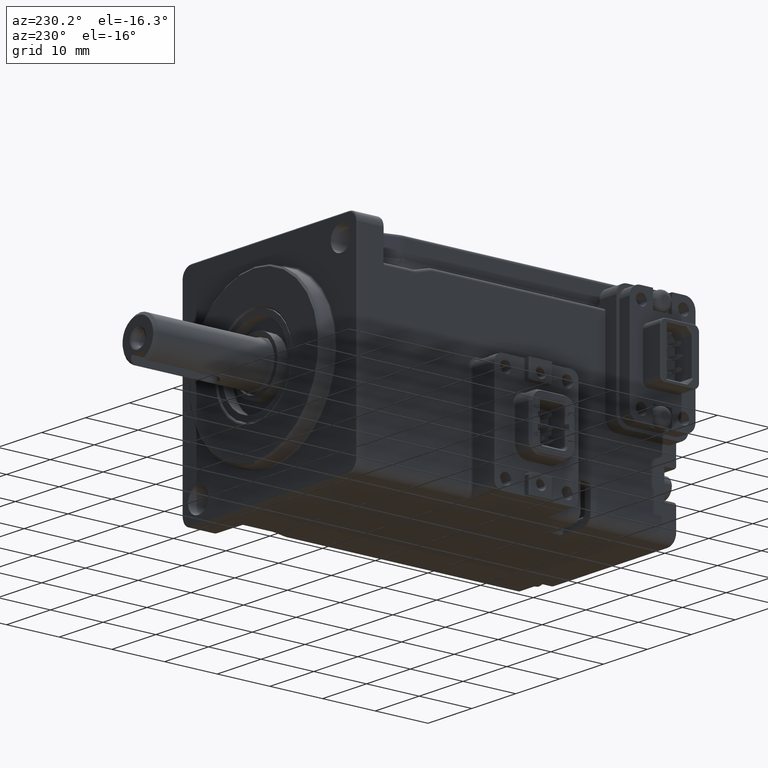
[diagram: clean part render]
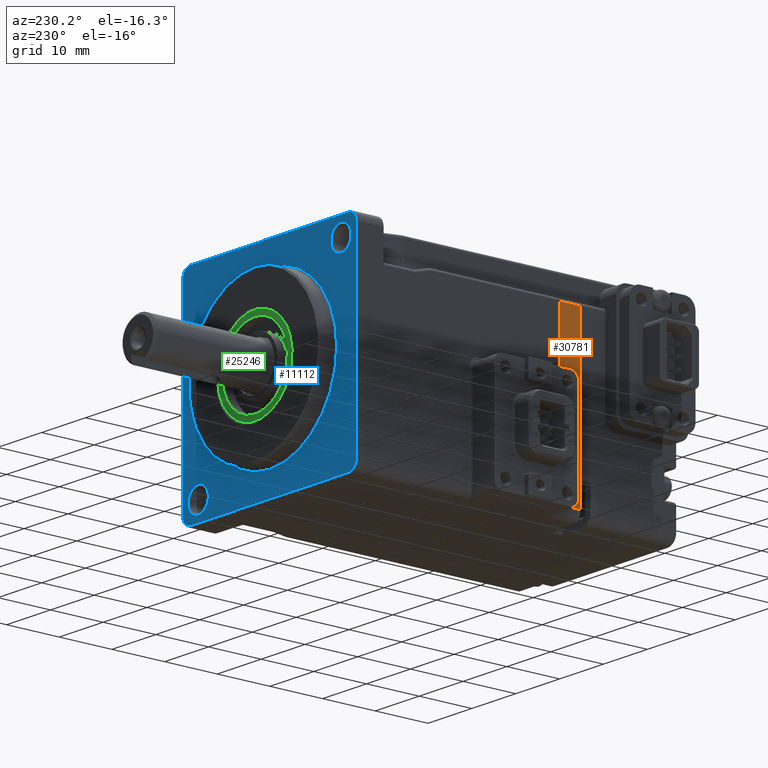
[diagram: same view with three faces highlighted in distinct colors, each labeled with its STEP entity id]
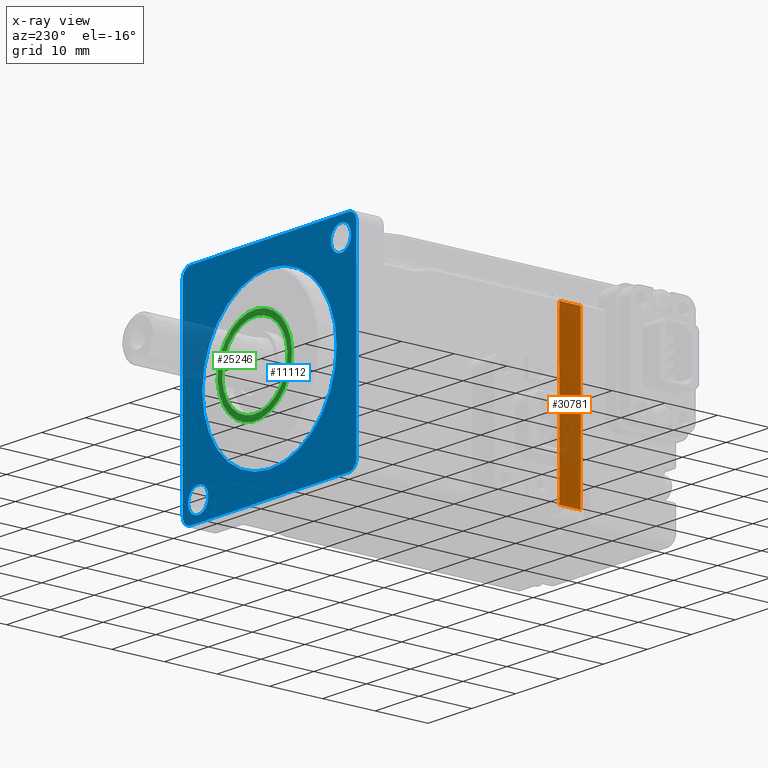
[diagram: x-ray of the same camera — body ghosted, the three highlighted faces saturated]
A machine part, auxiliary view with three faces highlighted in distinct colors.
The next image is the same camera in x-ray (body ghosted, the three faces saturated) — at least one of them is partly hidden behind the body in this view.
Their STEP definitions:

[orange] entity #30781 — the highlighted planar face has unit normal (1, 0, 0).
#250 = ORIENTED_EDGE ( 'NONE', *, *, #24151, .F. ) ;
#2078 = VECTOR ( 'NONE', #9762, 1000.000000000000000 ) ;
#2365 = AXIS2_PLACEMENT_3D ( 'NONE', #3391, #10712, #8291 ) ;
#3391 = CARTESIAN_POINT ( 'NONE',  ( -19.99999999999997513, -6.418476861114186249E-14, 17.99999999999993605 ) ) ;
#4224 = EDGE_CURVE ( 'NONE', #32824, #22142, #33379, .T. ) ;
#5685 = CARTESIAN_POINT ( 'NONE',  ( -19.99999999999996803, -4.000000000000017764, -18.00000000000003197 ) ) ;
#7414 = DIRECTION ( 'NONE',  ( -3.151439132538225287E-16, 1.000000000000000000, 1.278170454777735420E-15 ) ) ;
#7622 = FACE_OUTER_BOUND ( 'NONE', #34022, .T. ) ;
#8291 = DIRECTION ( 'NONE',  ( 3.151439132538225287E-16, -1.000000000000000000, -1.278170454777735420E-15 ) ) ;
#9257 = CARTESIAN_POINT ( 'NONE',  ( -19.99999999999997513, -1.734723475976807094E-14, -18.00000000000002487 ) ) ;
#9417 = VECTOR ( 'NONE', #25881, 1000.000000000000000 ) ;
#9762 = DIRECTION ( 'NONE',  ( 9.637352644315600173E-17, 1.278170454777735420E-15, -1.000000000000000000 ) ) ;
#10313 = CARTESIAN_POINT ( 'NONE',  ( -19.99999999999997513, -5.724587470723463412E-14, 12.99999999999995737 ) ) ;
#10712 = DIRECTION ( 'NONE',  ( 1.000000000000000000, 3.151439132538225287E-16, 4.028076389240736408E-31 ) ) ;
#11846 = DIRECTION ( 'NONE',  ( -1.243023563421512105E-46, -1.278170454777735420E-15, 1.000000000000000000 ) ) ;
#12815 = ORIENTED_EDGE ( 'NONE', *, *, #30928, .T. ) ;
#15196 = CARTESIAN_POINT ( 'NONE',  ( -19.99999999999997513, -1.734723475976807094E-14, -18.00000000000002487 ) ) ;
#18303 = LINE ( 'NONE', #28955, #30724 ) ;
#19648 = LINE ( 'NONE', #28031, #27776 ) ;
#21234 = VERTEX_POINT ( 'NONE', #10313 ) ;
#22142 = VERTEX_POINT ( 'NONE', #5685 ) ;
#23534 = CARTESIAN_POINT ( 'NONE',  ( -19.99999999999997513, -4.000000000000057732, 12.99999999999995204 ) ) ;
#23596 = PLANE ( 'NONE',  #2365 ) ;
#24151 = EDGE_CURVE ( 'NONE', #31138, #21234, #19648, .T. ) ;
#25881 = DIRECTION ( 'NONE',  ( 3.151439132538225287E-16, -1.000000000000000000, -1.278170454777735420E-15 ) ) ;
#26336 = ORIENTED_EDGE ( 'NONE', *, *, #4224, .F. ) ;
#27776 = VECTOR ( 'NONE', #11846, 1000.000000000000000 ) ;
#28031 = CARTESIAN_POINT ( 'NONE',  ( -19.99999999999997513, -6.418476861114186249E-14, 17.99999999999993605 ) ) ;
#28394 = CARTESIAN_POINT ( 'NONE',  ( -19.99999999999997513, -4.000000000000063949, 17.99999999999994316 ) ) ;
#28955 = CARTESIAN_POINT ( 'NONE',  ( -19.99999999999997513, -5.724587470723463412E-14, 12.99999999999995737 ) ) ;
#28971 = ORIENTED_EDGE ( 'NONE', *, *, #29173, .T. ) ;
#29173 = EDGE_CURVE ( 'NONE', #31138, #22142, #33474, .T. ) ;
#30724 = VECTOR ( 'NONE', #7414, 1000.000000000000000 ) ;
#30781 = ADVANCED_FACE ( 'NONE', ( #7622 ), #23596, .F. ) ;
#30928 = EDGE_CURVE ( 'NONE', #32824, #21234, #18303, .T. ) ;
#31138 = VERTEX_POINT ( 'NONE', #9257 ) ;
#32824 = VERTEX_POINT ( 'NONE', #23534 ) ;
#33379 = LINE ( 'NONE', #28394, #2078 ) ;
#33474 = LINE ( 'NONE', #15196, #9417 ) ;
#34022 = EDGE_LOOP ( 'NONE', ( #26336, #12815, #250, #28971 ) ) ;

[blue] entity #11112 — the highlighted planar face has unit normal (0, -1, 0).
#373 = AXIS2_PLACEMENT_3D ( 'NONE', #2399, #33873, #20646 ) ;
#423 = ORIENTED_EDGE ( 'NONE', *, *, #25373, .T. ) ;
#1126 = EDGE_CURVE ( 'NONE', #21275, #7003, #19931, .T. ) ;
#1253 = VECTOR ( 'NONE', #17139, 1000.000000000000000 ) ;
#1536 = DIRECTION ( 'NONE',  ( 0.000000000000000000, 0.000000000000000000, -1.000000000000000000 ) ) ;
#1690 = LINE ( 'NONE', #33663, #29685 ) ;
#1704 = CARTESIAN_POINT ( 'NONE',  ( -19.80000000000001137, 38.40000000000000568, -18.00000000000000355 ) ) ;
#1851 = CARTESIAN_POINT ( 'NONE',  ( 16.26345596729062137, 38.40000000000000568, -13.96345596729056382 ) ) ;
#2060 = CARTESIAN_POINT ( 'NONE',  ( 19.80000000000000426, 38.40000000000000568, 18.00000000000000355 ) ) ;
#2196 = CARTESIAN_POINT ( 'NONE',  ( 17.99999999999999645, 38.40000000000000568, 18.00000000000000355 ) ) ;
#2294 = CARTESIAN_POINT ( 'NONE',  ( 18.00000000000000355, 38.40000000000000568, -18.00000000000000355 ) ) ;
#2364 = DIRECTION ( 'NONE',  ( -0.000000000000000000, 1.000000000000000000, -0.000000000000000000 ) ) ;
#2399 = CARTESIAN_POINT ( 'NONE',  ( -16.26345596729061427, 38.40000000000000568, 16.26345596729056808 ) ) ;
#2504 = AXIS2_PLACEMENT_3D ( 'NONE', #19311, #6646, #13925 ) ;
#2824 = VERTEX_POINT ( 'NONE', #16872 ) ;
#2841 = CARTESIAN_POINT ( 'NONE',  ( 0.000000000000000000, 38.40000000000000568, 0.000000000000000000 ) ) ;
#3048 = CARTESIAN_POINT ( 'NONE',  ( 19.80000000000000426, 38.40000000000000568, 14.99999999999999822 ) ) ;
#3071 = CIRCLE ( 'NONE', #2504, 1.800000000000010036 ) ;
#3363 = AXIS2_PLACEMENT_3D ( 'NONE', #17211, #17022, #33011 ) ;
#3403 = CARTESIAN_POINT ( 'NONE',  ( 0.000000000000000000, 38.40000000000000568, -15.29999999999999893 ) ) ;
#3893 = AXIS2_PLACEMENT_3D ( 'NONE', #2294, #13073, #29421 ) ;
#4213 = CARTESIAN_POINT ( 'NONE',  ( -18.00000000000000711, 38.40000000000000568, 19.80000000000001137 ) ) ;
#4230 = EDGE_CURVE ( 'NONE', #26496, #9952, #12016, .T. ) ;
#4482 = DIRECTION ( 'NONE',  ( 0.000000000000000000, 0.000000000000000000, -1.000000000000000000 ) ) ;
#5190 = ORIENTED_EDGE ( 'NONE', *, *, #30650, .T. ) ;
#5299 = DIRECTION ( 'NONE',  ( 0.000000000000000000, -1.000000000000000000, 0.000000000000000000 ) ) ;
#5724 = CARTESIAN_POINT ( 'NONE',  ( -18.00000000000000355, 38.40000000000000568, -19.80000000000001137 ) ) ;
#6279 = ORIENTED_EDGE ( 'NONE', *, *, #22052, .T. ) ;
#6420 = AXIS2_PLACEMENT_3D ( 'NONE', #2841, #5299, #23087 ) ;
#6454 = AXIS2_PLACEMENT_3D ( 'NONE', #32023, #18671, #8107 ) ;
#6485 = CARTESIAN_POINT ( 'NONE',  ( 19.80000000000000782, 38.40000000000000568, -18.00000000000000355 ) ) ;
#6646 = DIRECTION ( 'NONE',  ( -0.000000000000000000, 1.000000000000000000, -0.000000000000000000 ) ) ;
#6753 = CARTESIAN_POINT ( 'NONE',  ( -16.26345596729061427, 38.40000000000000568, 18.56345596729056169 ) ) ;
#7003 = VERTEX_POINT ( 'NONE', #6753 ) ;
#7063 = DIRECTION ( 'NONE',  ( -0.000000000000000000, 1.000000000000000000, -0.000000000000000000 ) ) ;
#7265 = CIRCLE ( 'NONE', #23363, 1.800000000000010036 ) ;
#7363 = CARTESIAN_POINT ( 'NONE',  ( 18.00000000000000355, 38.40000000000000568, -19.80000000000001137 ) ) ;
#7716 = DIRECTION ( 'NONE',  ( -0.000000000000000000, 1.000000000000000000, -0.000000000000000000 ) ) ;
#8096 = CIRCLE ( 'NONE', #6420, 15.29999999999999893 ) ;
#8107 = DIRECTION ( 'NONE',  ( 0.000000000000000000, 0.000000000000000000, -1.000000000000000000 ) ) ;
#8336 = DIRECTION ( 'NONE',  ( -0.000000000000000000, 1.000000000000000000, -0.000000000000000000 ) ) ;
#8405 = FACE_BOUND ( 'NONE', #34150, .T. ) ;
#8917 = CARTESIAN_POINT ( 'NONE',  ( 17.99999999999999645, 38.40000000000000568, 19.80000000000000782 ) ) ;
#8935 = ORIENTED_EDGE ( 'NONE', *, *, #13683, .T. ) ;
#9058 = VERTEX_POINT ( 'NONE', #5724 ) ;
#9216 = DIRECTION ( 'NONE',  ( -0.000000000000000000, 1.000000000000000000, -0.000000000000000000 ) ) ;
#9702 = LINE ( 'NONE', #27814, #1253 ) ;
#9914 = EDGE_CURVE ( 'NONE', #18723, #26496, #3071, .T. ) ;
#9952 = VERTEX_POINT ( 'NONE', #8917 ) ;
#9960 = ORIENTED_EDGE ( 'NONE', *, *, #23108, .F. ) ;
#10310 = CARTESIAN_POINT ( 'NONE',  ( 16.26345596729062137, 38.40000000000000568, -16.26345596729056098 ) ) ;
#10406 = AXIS2_PLACEMENT_3D ( 'NONE', #10310, #7716, #28921 ) ;
#10558 = LINE ( 'NONE', #3048, #12057 ) ;
#10995 = EDGE_CURVE ( 'NONE', #17476, #33325, #25591, .T. ) ;
#11112 = ADVANCED_FACE ( 'NONE', ( #8405, #13922, #26998, #29598 ), #13577, .F. ) ;
#11315 = EDGE_LOOP ( 'NONE', ( #12191, #19839 ) ) ;
#11401 = EDGE_LOOP ( 'NONE', ( #11914, #26892, #13971, #5190, #423, #25478, #26980, #31548 ) ) ;
#11914 = ORIENTED_EDGE ( 'NONE', *, *, #14591, .T. ) ;
#12016 = LINE ( 'NONE', #25607, #13736 ) ;
#12057 = VECTOR ( 'NONE', #23957, 1000.000000000000000 ) ;
#12191 = ORIENTED_EDGE ( 'NONE', *, *, #32996, .F. ) ;
#13073 = DIRECTION ( 'NONE',  ( -0.000000000000000000, 1.000000000000000000, -0.000000000000000000 ) ) ;
#13577 = PLANE ( 'NONE',  #3363 ) ;
#13683 = EDGE_CURVE ( 'NONE', #2824, #18628, #8096, .T. ) ;
#13736 = VECTOR ( 'NONE', #30280, 1000.000000000000000 ) ;
#13922 = FACE_OUTER_BOUND ( 'NONE', #11401, .T. ) ;
#13925 = DIRECTION ( 'NONE',  ( 0.000000000000000000, 0.000000000000000000, -1.000000000000000000 ) ) ;
#13971 = ORIENTED_EDGE ( 'NONE', *, *, #10995, .T. ) ;
#14223 = VERTEX_POINT ( 'NONE', #2060 ) ;
#14591 = EDGE_CURVE ( 'NONE', #9952, #14223, #27633, .T. ) ;
#14722 = EDGE_CURVE ( 'NONE', #14223, #17476, #10558, .T. ) ;
#16872 = CARTESIAN_POINT ( 'NONE',  ( 1.873709602695450054E-15, 38.40000000000000568, 15.29999999999999893 ) ) ;
#17022 = DIRECTION ( 'NONE',  ( 0.000000000000000000, -1.000000000000000000, 0.000000000000000000 ) ) ;
#17139 = DIRECTION ( 'NONE',  ( -1.000000000000000000, 0.000000000000000000, -9.637352644315594010E-17 ) ) ;
#17211 = CARTESIAN_POINT ( 'NONE',  ( 0.000000000000000000, 38.40000000000000568, 14.99999999999999822 ) ) ;
#17476 = VERTEX_POINT ( 'NONE', #6485 ) ;
#18628 = VERTEX_POINT ( 'NONE', #3403 ) ;
#18671 = DIRECTION ( 'NONE',  ( 0.000000000000000000, -1.000000000000000000, 0.000000000000000000 ) ) ;
#18723 = VERTEX_POINT ( 'NONE', #20914 ) ;
#18800 = CARTESIAN_POINT ( 'NONE',  ( -16.26345596729061427, 38.40000000000000568, 13.96345596729057092 ) ) ;
#19071 = CARTESIAN_POINT ( 'NONE',  ( 16.26345596729062137, 38.40000000000000568, -16.26345596729056098 ) ) ;
#19311 = CARTESIAN_POINT ( 'NONE',  ( -18.00000000000000711, 38.40000000000000568, 18.00000000000000355 ) ) ;
#19839 = ORIENTED_EDGE ( 'NONE', *, *, #1126, .F. ) ;
#19931 = CIRCLE ( 'NONE', #34379, 2.299999999999996270 ) ;
#20646 = DIRECTION ( 'NONE',  ( 0.000000000000000000, 0.000000000000000000, -1.000000000000000000 ) ) ;
#20857 = EDGE_CURVE ( 'NONE', #22487, #18723, #1690, .T. ) ;
#20914 = CARTESIAN_POINT ( 'NONE',  ( -19.80000000000001137, 38.40000000000000568, 18.00000000000000355 ) ) ;
#21275 = VERTEX_POINT ( 'NONE', #18800 ) ;
#22052 = EDGE_CURVE ( 'NONE', #18628, #2824, #26517, .T. ) ;
#22348 = ORIENTED_EDGE ( 'NONE', *, *, #27434, .F. ) ;
#22487 = VERTEX_POINT ( 'NONE', #1704 ) ;
#22644 = CIRCLE ( 'NONE', #32571, 2.299999999999996270 ) ;
#23087 = DIRECTION ( 'NONE',  ( 0.000000000000000000, 0.000000000000000000, -1.000000000000000000 ) ) ;
#23108 = EDGE_CURVE ( 'NONE', #27949, #30672, #22644, .T. ) ;
#23363 = AXIS2_PLACEMENT_3D ( 'NONE', #30852, #7063, #33976 ) ;
#23957 = DIRECTION ( 'NONE',  ( 0.000000000000000000, 0.000000000000000000, -1.000000000000000000 ) ) ;
#25373 = EDGE_CURVE ( 'NONE', #9058, #22487, #7265, .T. ) ;
#25478 = ORIENTED_EDGE ( 'NONE', *, *, #20857, .T. ) ;
#25591 = CIRCLE ( 'NONE', #3893, 1.800000000000006484 ) ;
#25607 = CARTESIAN_POINT ( 'NONE',  ( 4.625929269271496761E-16, 38.40000000000000568, 19.80000000000001137 ) ) ;
#26496 = VERTEX_POINT ( 'NONE', #4213 ) ;
#26517 = CIRCLE ( 'NONE', #6454, 15.29999999999999893 ) ;
#26527 = CIRCLE ( 'NONE', #10406, 2.299999999999996270 ) ;
#26892 = ORIENTED_EDGE ( 'NONE', *, *, #14722, .T. ) ;
#26980 = ORIENTED_EDGE ( 'NONE', *, *, #9914, .T. ) ;
#26998 = FACE_BOUND ( 'NONE', #11315, .T. ) ;
#27434 = EDGE_CURVE ( 'NONE', #30672, #27949, #26527, .T. ) ;
#27633 = CIRCLE ( 'NONE', #29286, 1.800000000000010036 ) ;
#27751 = CARTESIAN_POINT ( 'NONE',  ( 16.26345596729062137, 38.40000000000000568, -18.56345596729055458 ) ) ;
#27814 = CARTESIAN_POINT ( 'NONE',  ( 3.353798720221827707E-15, 38.40000000000000568, -19.80000000000001137 ) ) ;
#27949 = VERTEX_POINT ( 'NONE', #27751 ) ;
#28921 = DIRECTION ( 'NONE',  ( 0.000000000000000000, 0.000000000000000000, -1.000000000000000000 ) ) ;
#29286 = AXIS2_PLACEMENT_3D ( 'NONE', #2196, #2364, #4482 ) ;
#29421 = DIRECTION ( 'NONE',  ( 0.000000000000000000, 0.000000000000000000, -1.000000000000000000 ) ) ;
#29598 = FACE_BOUND ( 'NONE', #33196, .T. ) ;
#29685 = VECTOR ( 'NONE', #30566, 1000.000000000000000 ) ;
#30051 = DIRECTION ( 'NONE',  ( 0.000000000000000000, 0.000000000000000000, -1.000000000000000000 ) ) ;
#30100 = CARTESIAN_POINT ( 'NONE',  ( -16.26345596729061427, 38.40000000000000568, 16.26345596729056808 ) ) ;
#30280 = DIRECTION ( 'NONE',  ( 1.000000000000000000, 0.000000000000000000, -9.637352644315594010E-17 ) ) ;
#30566 = DIRECTION ( 'NONE',  ( 0.000000000000000000, 0.000000000000000000, 1.000000000000000000 ) ) ;
#30650 = EDGE_CURVE ( 'NONE', #33325, #9058, #9702, .T. ) ;
#30672 = VERTEX_POINT ( 'NONE', #1851 ) ;
#30852 = CARTESIAN_POINT ( 'NONE',  ( -18.00000000000000711, 38.40000000000000568, -18.00000000000000355 ) ) ;
#31441 = CIRCLE ( 'NONE', #373, 2.299999999999996270 ) ;
#31548 = ORIENTED_EDGE ( 'NONE', *, *, #4230, .T. ) ;
#32023 = CARTESIAN_POINT ( 'NONE',  ( 0.000000000000000000, 38.40000000000000568, 0.000000000000000000 ) ) ;
#32571 = AXIS2_PLACEMENT_3D ( 'NONE', #19071, #8336, #30051 ) ;
#32996 = EDGE_CURVE ( 'NONE', #7003, #21275, #31441, .T. ) ;
#33011 = DIRECTION ( 'NONE',  ( 0.000000000000000000, -0.000000000000000000, -1.000000000000000000 ) ) ;
#33196 = EDGE_LOOP ( 'NONE', ( #22348, #9960 ) ) ;
#33325 = VERTEX_POINT ( 'NONE', #7363 ) ;
#33663 = CARTESIAN_POINT ( 'NONE',  ( -19.80000000000001137, 38.40000000000000568, 14.99999999999999822 ) ) ;
#33873 = DIRECTION ( 'NONE',  ( -0.000000000000000000, 1.000000000000000000, -0.000000000000000000 ) ) ;
#33976 = DIRECTION ( 'NONE',  ( 0.000000000000000000, 0.000000000000000000, -1.000000000000000000 ) ) ;
#34150 = EDGE_LOOP ( 'NONE', ( #6279, #8935 ) ) ;
#34379 = AXIS2_PLACEMENT_3D ( 'NONE', #30100, #9216, #1536 ) ;

[green] entity #25246 — the highlighted planar face has unit normal (-0, 1, 0).
#683 = ORIENTED_EDGE ( 'NONE', *, *, #7759, .T. ) ;
#727 = CARTESIAN_POINT ( 'NONE',  ( -1.308198341321009650E-15, 41.20000000000000284, 5.865967434015573190E-15 ) ) ;
#818 = DIRECTION ( 'NONE',  ( -0.6305187519082224856, 8.163404592832032979E-16, -0.7761740162438430790 ) ) ;
#3032 = DIRECTION ( 'NONE',  ( -2.931682674400803990E-16, 1.000000000000000000, 1.276756478318930021E-15 ) ) ;
#3545 = ORIENTED_EDGE ( 'NONE', *, *, #13861, .F. ) ;
#3732 = FACE_BOUND ( 'NONE', #24678, .T. ) ;
#3815 = CARTESIAN_POINT ( 'NONE',  ( -4.683814131348718490, 41.20000000000000995, -5.765815552140419520 ) ) ;
#4199 = CARTESIAN_POINT ( 'NONE',  ( 4.683814131348715826, 41.19999999999999574, 5.765815552140431954 ) ) ;
#5698 = CARTESIAN_POINT ( 'NONE',  ( -1.308198341321009650E-15, 41.20000000000000284, 5.865967434015573190E-15 ) ) ;
#6160 = DIRECTION ( 'NONE',  ( -2.931682674400803990E-16, 1.000000000000000000, 1.276756478318930021E-15 ) ) ;
#6210 = FACE_OUTER_BOUND ( 'NONE', #33857, .T. ) ;
#7096 = DIRECTION ( 'NONE',  ( -0.6305187519082224856, 8.163404592832032979E-16, -0.7761740162438430790 ) ) ;
#7293 = AXIS2_PLACEMENT_3D ( 'NONE', #32271, #9540, #818 ) ;
#7759 = EDGE_CURVE ( 'NONE', #32505, #22069, #27429, .T. ) ;
#8480 = VERTEX_POINT ( 'NONE', #3815 ) ;
#8809 = PLANE ( 'NONE',  #26214 ) ;
#8986 = DIRECTION ( 'NONE',  ( -2.414396854225768541E-16, 1.000000000000000000, 1.340434808483754408E-15 ) ) ;
#9540 = DIRECTION ( 'NONE',  ( -2.931682674400803990E-16, 1.000000000000000000, 1.276756478318930021E-15 ) ) ;
#9704 = CARTESIAN_POINT ( 'NONE',  ( -1.308198341321009650E-15, 41.20000000000000284, 5.865967434015573190E-15 ) ) ;
#10071 = CIRCLE ( 'NONE', #7293, 8.500000000000000000 ) ;
#10339 = CIRCLE ( 'NONE', #13628, 7.428508854294133101 ) ;
#12484 = CARTESIAN_POINT ( 'NONE',  ( -5.359409391219892349, 41.20000000000000995, -6.597479138072659843 ) ) ;
#13032 = VERTEX_POINT ( 'NONE', #4199 ) ;
#13504 = AXIS2_PLACEMENT_3D ( 'NONE', #9704, #19764, #7096 ) ;
#13628 = AXIS2_PLACEMENT_3D ( 'NONE', #727, #6160, #29785 ) ;
#13861 = EDGE_CURVE ( 'NONE', #13032, #8480, #10339, .T. ) ;
#16049 = DIRECTION ( 'NONE',  ( -0.6305187519082224856, 9.340897399477584815E-16, -0.7761740162438429680 ) ) ;
#19389 = CARTESIAN_POINT ( 'NONE',  ( -1.308198341321009650E-15, 41.20000000000000284, 5.865967434015573190E-15 ) ) ;
#19764 = DIRECTION ( 'NONE',  ( -2.931682674400803990E-16, 1.000000000000000000, 1.276756478318930021E-15 ) ) ;
#22069 = VERTEX_POINT ( 'NONE', #29289 ) ;
#22358 = DIRECTION ( 'NONE',  ( -0.6305187519082223746, 8.881784197001251337E-16, -0.7761740162438428570 ) ) ;
#22807 = CIRCLE ( 'NONE', #25608, 7.428508854294133101 ) ;
#24678 = EDGE_LOOP ( 'NONE', ( #30996, #3545 ) ) ;
#24934 = EDGE_CURVE ( 'NONE', #22069, #32505, #10071, .T. ) ;
#25246 = ADVANCED_FACE ( 'NONE', ( #3732, #6210 ), #8809, .T. ) ;
#25608 = AXIS2_PLACEMENT_3D ( 'NONE', #5698, #3032, #16049 ) ;
#26214 = AXIS2_PLACEMENT_3D ( 'NONE', #19389, #8986, #22358 ) ;
#27429 = CIRCLE ( 'NONE', #13504, 8.500000000000000000 ) ;
#28640 = ORIENTED_EDGE ( 'NONE', *, *, #24934, .T. ) ;
#29289 = CARTESIAN_POINT ( 'NONE',  ( 5.359409391219891461, 41.19999999999999574, 6.597479138072671390 ) ) ;
#29785 = DIRECTION ( 'NONE',  ( -0.6305187519082224856, 9.340897399477584815E-16, -0.7761740162438429680 ) ) ;
#30996 = ORIENTED_EDGE ( 'NONE', *, *, #34087, .F. ) ;
#32271 = CARTESIAN_POINT ( 'NONE',  ( -1.308198341321009650E-15, 41.20000000000000284, 5.865967434015573190E-15 ) ) ;
#32505 = VERTEX_POINT ( 'NONE', #12484 ) ;
#33857 = EDGE_LOOP ( 'NONE', ( #28640, #683 ) ) ;
#34087 = EDGE_CURVE ( 'NONE', #8480, #13032, #22807, .T. ) ;